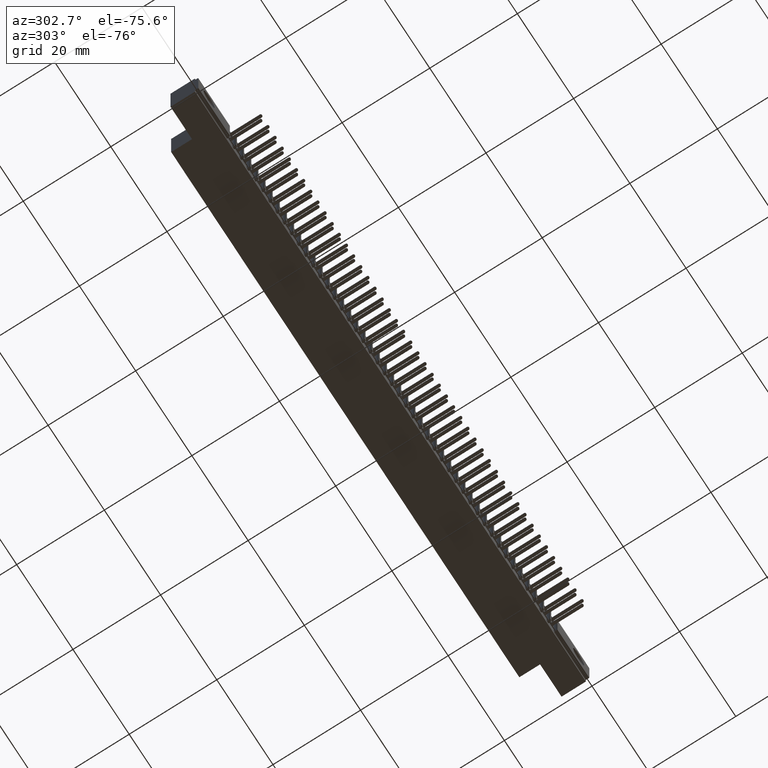
[diagram: clean part render]
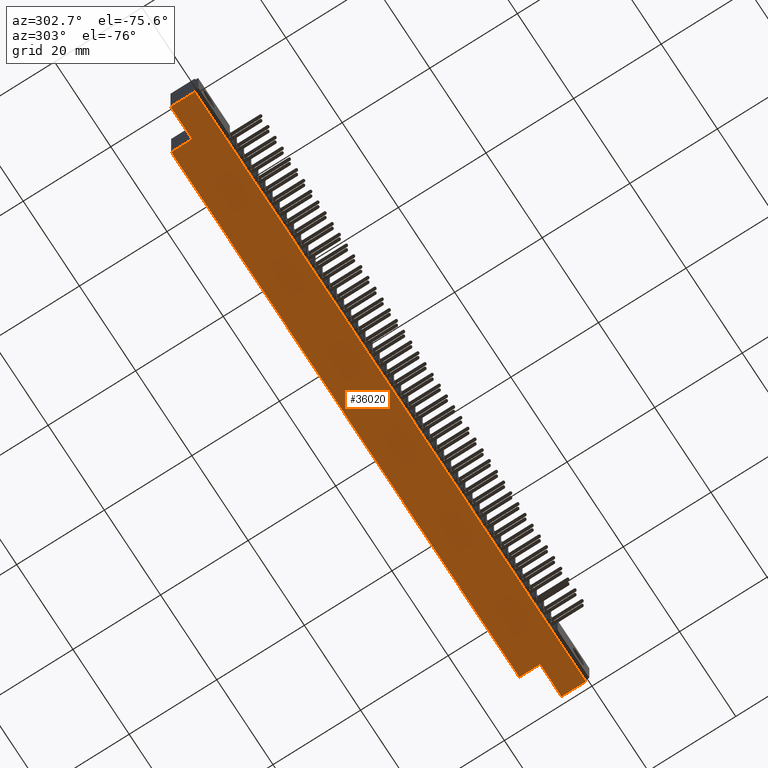
[diagram: same view with one face highlighted and labeled with its STEP entity id]
A machine part, auxiliary view. The second image highlights one B-rep face of the part: STEP entity #36020.
In plain terms, the highlighted planar face has unit normal (0, 0, 1).
Its self-contained STEP definition (entity closure, byte-faithful):
#790 = CARTESIAN_POINT ( 'NONE',  ( 5.175000000000000700, 0.2500000000000000000, -0.4000000000000000200 ) ) ;
#1137 = VECTOR ( 'NONE', #44558, 39.37007874015748100 ) ;
#3272 = VERTEX_POINT ( 'NONE', #50835 ) ;
#3572 = EDGE_CURVE ( 'NONE', #9348, #22886, #11187, .T. ) ;
#4038 = VERTEX_POINT ( 'NONE', #27171 ) ;
#4145 = VECTOR ( 'NONE', #39454, 39.37007874015748100 ) ;
#4340 = VECTOR ( 'NONE', #17426, 39.37007874015748100 ) ;
#5363 = EDGE_CURVE ( 'NONE', #3272, #14918, #55206, .T. ) ;
#5801 = CARTESIAN_POINT ( 'NONE',  ( 0.2999999999999999300, 0.2500000000000000000, -0.4000000000000000800 ) ) ;
#5901 = CARTESIAN_POINT ( 'NONE',  ( 5.475000000000001400, 0.4370000000000000000, -0.4000000000000000200 ) ) ;
#6150 = EDGE_CURVE ( 'NONE', #28894, #38982, #36398, .T. ) ;
#6712 = VECTOR ( 'NONE', #20534, 39.37007874015748100 ) ;
#9348 = VERTEX_POINT ( 'NONE', #25803 ) ;
#9994 = CARTESIAN_POINT ( 'NONE',  ( 0.0000000000000000000, 0.2500000000000000000, -0.4000000000000000200 ) ) ;
#11052 = EDGE_LOOP ( 'NONE', ( #38853, #17396, #20115, #30872, #44260, #34226, #49671, #29591 ) ) ;
#11187 = LINE ( 'NONE', #42573, #55423 ) ;
#14687 = CARTESIAN_POINT ( 'NONE',  ( 5.175000000000000700, 0.2500000000000000000, -0.4000000000000000200 ) ) ;
#14735 = DIRECTION ( 'NONE',  ( -1.000000000000000000, 0.0000000000000000000, 0.0000000000000000000 ) ) ;
#14918 = VERTEX_POINT ( 'NONE', #47863 ) ;
#17396 = ORIENTED_EDGE ( 'NONE', *, *, #3572, .T. ) ;
#17426 = DIRECTION ( 'NONE',  ( -0.0000000000000000000, -1.000000000000000000, -0.0000000000000000000 ) ) ;
#17946 = CARTESIAN_POINT ( 'NONE',  ( 0.0000000000000000000, 0.4370000000000000000, -0.4000000000000000200 ) ) ;
#19556 = LINE ( 'NONE', #41682, #6712 ) ;
#19858 = DIRECTION ( 'NONE',  ( -1.000000000000000000, -0.0000000000000000000, -0.0000000000000000000 ) ) ;
#19934 = EDGE_CURVE ( 'NONE', #38982, #22886, #28626, .T. ) ;
#20115 = ORIENTED_EDGE ( 'NONE', *, *, #19934, .F. ) ;
#20534 = DIRECTION ( 'NONE',  ( -0.0000000000000000000, 1.000000000000000000, -0.0000000000000000000 ) ) ;
#20550 = CARTESIAN_POINT ( 'NONE',  ( 0.0000000000000000000, 0.4370000000000000000, -0.4000000000000000200 ) ) ;
#20611 = CARTESIAN_POINT ( 'NONE',  ( 0.0000000000000000000, 0.03099999999999995100, -0.3999999999999999700 ) ) ;
#20778 = EDGE_CURVE ( 'NONE', #4038, #9348, #24035, .T. ) ;
#21079 = VECTOR ( 'NONE', #19858, 39.37007874015748100 ) ;
#22283 = DIRECTION ( 'NONE',  ( 0.0000000000000000000, 0.0000000000000000000, 1.000000000000000000 ) ) ;
#22886 = VERTEX_POINT ( 'NONE', #20611 ) ;
#22994 = VECTOR ( 'NONE', #14735, 39.37007874015748100 ) ;
#24035 = LINE ( 'NONE', #5901, #1137 ) ;
#24338 = LINE ( 'NONE', #36121, #22994 ) ;
#24898 = VERTEX_POINT ( 'NONE', #14687 ) ;
#25679 = DIRECTION ( 'NONE',  ( -1.000000000000000000, -0.0000000000000000000, 2.276539994720219800E-016 ) ) ;
#25803 = CARTESIAN_POINT ( 'NONE',  ( 5.475000000000001400, 0.03099999999999995100, -0.3999999999999999700 ) ) ;
#27171 = CARTESIAN_POINT ( 'NONE',  ( 5.475000000000001400, 0.2500000000000000000, -0.4000000000000000200 ) ) ;
#28443 = LINE ( 'NONE', #790, #4145 ) ;
#28626 = LINE ( 'NONE', #47383, #4340 ) ;
#28894 = VERTEX_POINT ( 'NONE', #5801 ) ;
#29591 = ORIENTED_EDGE ( 'NONE', *, *, #48246, .F. ) ;
#30872 = ORIENTED_EDGE ( 'NONE', *, *, #6150, .F. ) ;
#31052 = AXIS2_PLACEMENT_3D ( 'NONE', #17946, #22283, #52212 ) ;
#34226 = ORIENTED_EDGE ( 'NONE', *, *, #5363, .F. ) ;
#36020 = ADVANCED_FACE ( 'NONE', ( #51490 ), #43615, .F. ) ;
#36121 = CARTESIAN_POINT ( 'NONE',  ( 5.475000000000001400, 0.2500000000000000000, -0.4000000000000000200 ) ) ;
#36398 = LINE ( 'NONE', #55568, #46432 ) ;
#38853 = ORIENTED_EDGE ( 'NONE', *, *, #20778, .T. ) ;
#38982 = VERTEX_POINT ( 'NONE', #9994 ) ;
#39454 = DIRECTION ( 'NONE',  ( -0.0000000000000000000, 1.000000000000000000, -0.0000000000000000000 ) ) ;
#41682 = CARTESIAN_POINT ( 'NONE',  ( 0.2999999999999999300, 0.2500000000000000000, -0.4000000000000000800 ) ) ;
#42146 = DIRECTION ( 'NONE',  ( -1.000000000000000000, -0.0000000000000000000, -0.0000000000000000000 ) ) ;
#42573 = CARTESIAN_POINT ( 'NONE',  ( 5.475000000000001400, 0.03099999999999995100, -0.3999999999999999700 ) ) ;
#43615 = PLANE ( 'NONE',  #31052 ) ;
#44260 = ORIENTED_EDGE ( 'NONE', *, *, #49068, .T. ) ;
#44558 = DIRECTION ( 'NONE',  ( -0.0000000000000000000, -1.000000000000000000, -0.0000000000000000000 ) ) ;
#46432 = VECTOR ( 'NONE', #25679, 39.37007874015748100 ) ;
#47383 = CARTESIAN_POINT ( 'NONE',  ( 0.0000000000000000000, 0.4370000000000000000, -0.4000000000000000200 ) ) ;
#47863 = CARTESIAN_POINT ( 'NONE',  ( 0.2999999999999999300, 0.4370000000000000000, -0.4000000000000000800 ) ) ;
#48246 = EDGE_CURVE ( 'NONE', #4038, #24898, #24338, .T. ) ;
#49068 = EDGE_CURVE ( 'NONE', #28894, #14918, #19556, .T. ) ;
#49671 = ORIENTED_EDGE ( 'NONE', *, *, #54192, .F. ) ;
#50835 = CARTESIAN_POINT ( 'NONE',  ( 5.175000000000000700, 0.4370000000000000000, -0.4000000000000000200 ) ) ;
#51490 = FACE_OUTER_BOUND ( 'NONE', #11052, .T. ) ;
#52212 = DIRECTION ( 'NONE',  ( 1.000000000000000000, 0.0000000000000000000, -0.0000000000000000000 ) ) ;
#54192 = EDGE_CURVE ( 'NONE', #24898, #3272, #28443, .T. ) ;
#55206 = LINE ( 'NONE', #20550, #21079 ) ;
#55423 = VECTOR ( 'NONE', #42146, 39.37007874015748100 ) ;
#55568 = CARTESIAN_POINT ( 'NONE',  ( 0.0000000000000000000, 0.2500000000000000000, -0.4000000000000000200 ) ) ;